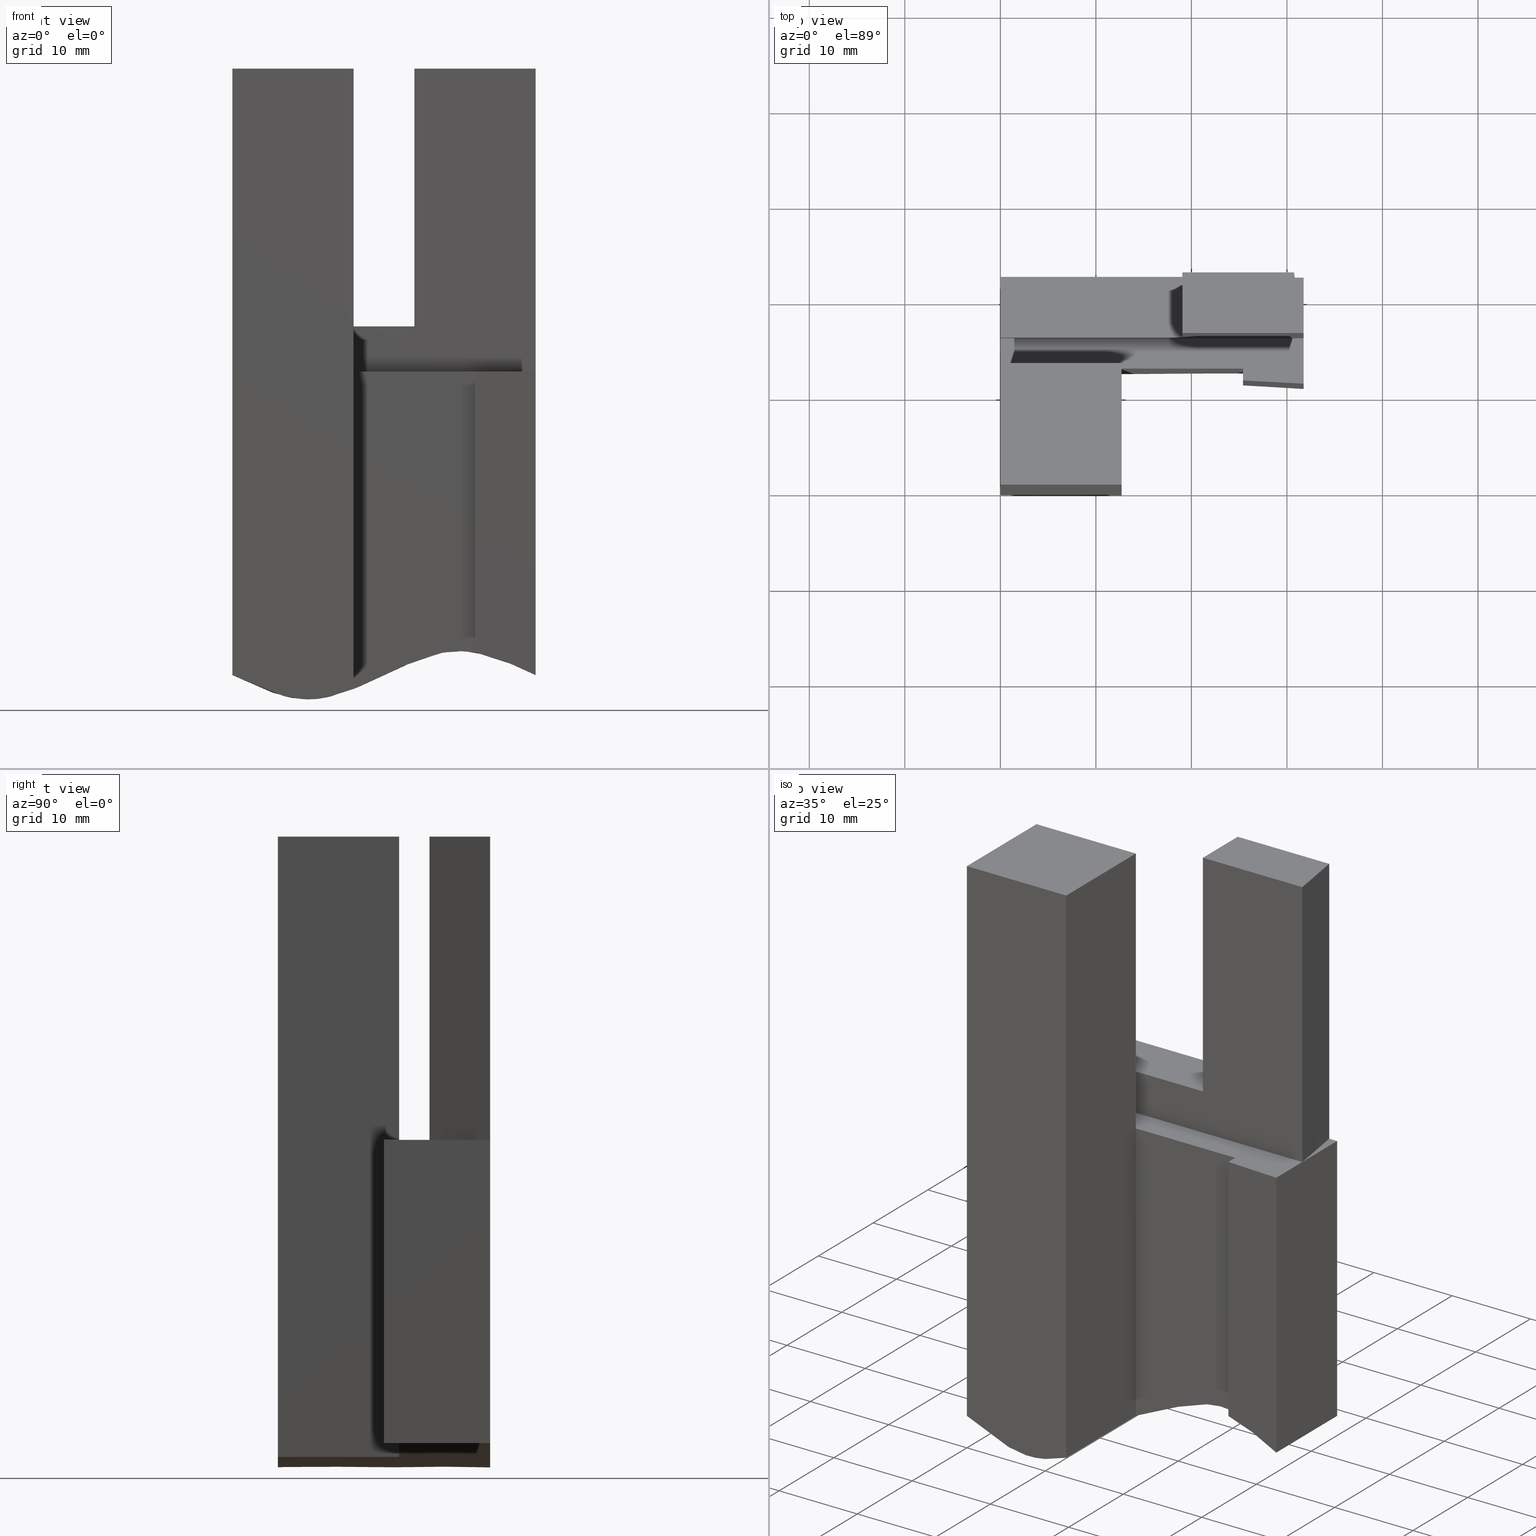
[diagram: canonical four-view strip — front | top / right | iso, engineering-drawing reading convention]
A machine part, canonical four-view strip (front | top / right | iso — engineering-drawing reading convention). The complete STEP part file that produces these views, byte-faithful:
ISO-10303-21;
HEADER;
/* Generated by software containing ST-Developer
 * from STEP Tools, Inc. (www.steptools.com) 
 */

FILE_DESCRIPTION(
/* description */ ('Alibre Inc.'),
/* implementation_level */ '2;1');

FILE_NAME(
/* name */ 'export1',
/* time_stamp */ '2018-08-25T12:08:32-06:00',
/* author */ (''),
/* organization */ (''),
/* preprocessor_version */ 'ST-DEVELOPER v17',
/* originating_system */ 'Alibre',
/* authorisation */ '');

FILE_SCHEMA (('CONFIG_CONTROL_DESIGN'));
ENDSEC;

DATA;
#10=MECHANICAL_CONTEXT('detailed design',#18,'mechanical');
#11=PRODUCT_RELATED_PRODUCT_CATEGORY('detail','',(#98));
#12=CC_DESIGN_SECURITY_CLASSIFICATION(#14,(#97));
#13=SECURITY_CLASSIFICATION_LEVEL('unclassified');
#14=SECURITY_CLASSIFICATION('name','Security for version',#13);
#15=SHAPE_DEFINITION_REPRESENTATION(#16,#632);
#16=PRODUCT_DEFINITION_SHAPE('','DefinitionDesc',#96);
#17=APPLICATION_PROTOCOL_DEFINITION('AP definition status',
'config_control_design',1994,#18);
#18=APPLICATION_CONTEXT(
'control the configuration of three dimensional design');
#19=DESIGN_CONTEXT('detailed design',#18,'design');
#20=PERSON_AND_ORGANIZATION_ROLE('creator');
#21=PERSON_AND_ORGANIZATION_ROLE('classification_officer');
#22=PERSON_AND_ORGANIZATION_ROLE('creator');
#23=PERSON_AND_ORGANIZATION_ROLE('design_supplier');
#24=PERSON_AND_ORGANIZATION_ROLE('design_owner');
#25=CC_DESIGN_PERSON_AND_ORGANIZATION_ASSIGNMENT(#57,#20,(#96));
#26=CC_DESIGN_PERSON_AND_ORGANIZATION_ASSIGNMENT(#60,#21,(#14));
#27=CC_DESIGN_PERSON_AND_ORGANIZATION_ASSIGNMENT(#61,#22,(#97));
#28=CC_DESIGN_PERSON_AND_ORGANIZATION_ASSIGNMENT(#62,#23,(#97));
#29=CC_DESIGN_PERSON_AND_ORGANIZATION_ASSIGNMENT(#63,#24,(#98));
#30=DATE_TIME_ROLE('creation_date');
#31=DATE_TIME_ROLE('classification_date');
#32=CC_DESIGN_DATE_AND_TIME_ASSIGNMENT(#86,#30,(#96));
#33=CC_DESIGN_DATE_AND_TIME_ASSIGNMENT(#89,#31,(#14));
#34=CC_DESIGN_APPROVAL(#93,(#96));
#35=CC_DESIGN_APPROVAL(#94,(#97));
#36=CC_DESIGN_APPROVAL(#95,(#14));
#37=APPROVAL_PERSON_ORGANIZATION(#56,#93,#64);
#38=APPROVAL_PERSON_ORGANIZATION(#58,#94,#65);
#39=APPROVAL_PERSON_ORGANIZATION(#59,#95,#66);
#40=ORGANIZATION('DEFINITION_APPROVEDBY_ORG_ID',
'DEFINITION_APPROVEDBY_ORG_NAME','DEFINITION_APPROVEDBY_ORG_DESCR');
#41=ORGANIZATION('DEF_CREATOR_ORG_ID','DEF_CREATOR_ORG_NAME',
'DEF_CREATOR_ORG_DESCR');
#42=ORGANIZATION('APPROVEDBY_ORG_ID','APPROVEDBY_ORG_NAME',
'APPROVEDBY_ORG_DESCR');
#43=ORGANIZATION('SECURITY_APPROVEDBY_ORG_ID',
'SECURITY_APPROVEDBY_ORG_NAME','SECURITY_APPROVEDBY_ORG_DESCR');
#44=ORGANIZATION('CLASSOFFICER_ORG_ID','CLASSOFFICER_ORG_NAME',
'CLASSOFFICER_ORG_DESCR');
#45=ORGANIZATION('CREATOR_ORG_ID','CREATOR_ORG_NAME',
'CREATOR_ORG_DESCR');
#46=ORGANIZATION('SUPPLIER_ORG_ID','SUPPLIER_ORG_NAME',
'SUPPLIER_ORG_DESCR');
#47=ORGANIZATION('OWNER_ORG_ID','OWNER_ORG_NAME','OWNER_ORG_DESCR');
#48=PERSON('DEFINITION_approverID','DEFINITION_APPROVEDBY_LASTNAME',
'DEFINITION_APPROVEDBY_FIRSTNAME',$,$,$);
#49=PERSON('DEF_createrID','DEF_CREATOR_LASTNAME',
'DEF_CREATOR_FIRSTNAME',$,$,$);
#50=PERSON('approverID','APPROVEDBY_LASTNAME','APPROVEDBY_FIRSTNAME',$,
$,$);
#51=PERSON('SECURITY_approverID','SECURITY_LASTNAME',
'SECURITY_APPROVEDBY_FIRSTNAME',$,$,$);
#52=PERSON('classifierID','CLASSOFFICER_LASTNAME',
'CLASSOFFICER_FIRSTNAME',$,$,$);
#53=PERSON('createrID','CREATOR_LASTNAME','CREATOR_FIRSTNAME',$,$,$);
#54=PERSON('supplierID','SUPPLIER_LASTNAME','SUPPLIER_FIRSTNAME',$,$,$);
#55=PERSON('ownerID','OWNER_LASTNAME','OWNER_FIRSTNAME',$,$,$);
#56=PERSON_AND_ORGANIZATION(#48,#40);
#57=PERSON_AND_ORGANIZATION(#49,#41);
#58=PERSON_AND_ORGANIZATION(#50,#42);
#59=PERSON_AND_ORGANIZATION(#51,#43);
#60=PERSON_AND_ORGANIZATION(#52,#44);
#61=PERSON_AND_ORGANIZATION(#53,#45);
#62=PERSON_AND_ORGANIZATION(#54,#46);
#63=PERSON_AND_ORGANIZATION(#55,#47);
#64=APPROVAL_ROLE('definition_approval');
#65=APPROVAL_ROLE('version_approval');
#66=APPROVAL_ROLE('security_approval');
#67=APPROVAL_DATE_TIME(#85,#93);
#68=APPROVAL_DATE_TIME(#87,#94);
#69=APPROVAL_DATE_TIME(#88,#95);
#70=COORDINATED_UNIVERSAL_TIME_OFFSET(7,0,.BEHIND.);
#71=COORDINATED_UNIVERSAL_TIME_OFFSET(7,0,.BEHIND.);
#72=COORDINATED_UNIVERSAL_TIME_OFFSET(7,0,.BEHIND.);
#73=COORDINATED_UNIVERSAL_TIME_OFFSET(7,0,.BEHIND.);
#74=COORDINATED_UNIVERSAL_TIME_OFFSET(7,0,.BEHIND.);
#75=LOCAL_TIME(8,25,30.,#70);
#76=LOCAL_TIME(8,25,30.,#71);
#77=LOCAL_TIME(8,25,30.,#72);
#78=LOCAL_TIME(8,25,30.,#73);
#79=LOCAL_TIME(8,25,30.,#74);
#80=CALENDAR_DATE(2013,28,1);
#81=CALENDAR_DATE(2013,28,1);
#82=CALENDAR_DATE(2013,28,1);
#83=CALENDAR_DATE(2013,28,1);
#84=CALENDAR_DATE(2013,28,1);
#85=DATE_AND_TIME(#80,#75);
#86=DATE_AND_TIME(#81,#76);
#87=DATE_AND_TIME(#82,#77);
#88=DATE_AND_TIME(#83,#78);
#89=DATE_AND_TIME(#84,#79);
#90=APPROVAL_STATUS('not_yet_approved');
#91=APPROVAL_STATUS('not_yet_approved');
#92=APPROVAL_STATUS('not_yet_approved');
#93=APPROVAL(#90,'defintion approval');
#94=APPROVAL(#91,'version approval');
#95=APPROVAL(#92,'security approval');
#96=PRODUCT_DEFINITION('DefinitionID','DefinitionDesc',#97,#19);
#97=PRODUCT_DEFINITION_FORMATION_WITH_SPECIFIED_SOURCE(
'PRODUCT_VERSION_ID','PRODUCT_VERSION_DESCR',#98,.NOT_KNOWN.);
#98=PRODUCT('ID_1','Deckle Tenon','',(#10));
#99=(
LENGTH_UNIT()
NAMED_UNIT(*)
SI_UNIT(.CENTI.,.METRE.)
);
#100=DIMENSIONAL_EXPONENTS(1.,0.,0.,0.,0.,0.,0.);
#101=LENGTH_MEASURE_WITH_UNIT(LENGTH_MEASURE(2.54),#99);
#102=(
CONVERSION_BASED_UNIT('INCH',#101)
LENGTH_UNIT()
NAMED_UNIT(#100)
);
#103=(
NAMED_UNIT(*)
PLANE_ANGLE_UNIT()
SI_UNIT($,.RADIAN.)
);
#104=(
NAMED_UNIT(*)
SI_UNIT($,.STERADIAN.)
SOLID_ANGLE_UNIT()
);
#105=UNCERTAINTY_MEASURE_WITH_UNIT(LENGTH_MEASURE(1.E-6),#102,
'DISTANCE_ACCURACY_VALUE',
'Maximum model space distance between geometric entities at asserted c
onnectivities');
#106=(
GEOMETRIC_REPRESENTATION_CONTEXT(3)
GLOBAL_UNCERTAINTY_ASSIGNED_CONTEXT((#105))
GLOBAL_UNIT_ASSIGNED_CONTEXT((#104,#103,#102))
REPRESENTATION_CONTEXT('ID1','3D')
);
#107=B_SPLINE_SURFACE_WITH_KNOTS('',3,1,((#574,#575),(#576,#577),(#578,
#579),(#580,#581),(#582,#583),(#584,#585),(#586,#587)),.UNSPECIFIED.,.F.,
 .F.,.U.,(4,1,1,1,4),(2,2),(0.,0.25,0.5,0.75,1.),(0.,22.0937546743774),
 .UNSPECIFIED.);
#108=VECTOR('',#427,1.);
#109=VECTOR('',#428,1.);
#110=VECTOR('',#429,1.);
#111=VECTOR('',#431,1.);
#112=VECTOR('',#432,1.);
#113=VECTOR('',#433,1.);
#114=VECTOR('',#434,1.);
#115=VECTOR('',#436,1.);
#116=VECTOR('',#437,1.);
#117=VECTOR('',#439,1.);
#118=VECTOR('',#440,1.);
#119=VECTOR('',#441,1.);
#120=VECTOR('',#442,1.);
#121=VECTOR('',#443,1.);
#122=VECTOR('',#445,1.);
#123=VECTOR('',#446,1.);
#124=VECTOR('',#447,1.);
#125=VECTOR('',#449,1.);
#126=VECTOR('',#450,1.);
#127=VECTOR('',#451,1.);
#128=VECTOR('',#452,1.);
#129=VECTOR('',#454,1.);
#130=VECTOR('',#455,1.);
#131=VECTOR('',#456,1.);
#132=VECTOR('',#458,1.);
#133=VECTOR('',#459,1.);
#134=VECTOR('',#460,1.);
#135=VECTOR('',#463,1.);
#136=VECTOR('',#464,1.);
#137=VECTOR('',#465,1.);
#138=VECTOR('',#466,1.);
#139=VECTOR('',#468,1.);
#140=VECTOR('',#469,1.);
#141=VECTOR('',#471,1.);
#142=VECTOR('',#472,1.);
#143=VECTOR('',#475,1.);
#144=VECTOR('',#476,1.);
#145=VECTOR('',#478,1.);
#146=VECTOR('',#479,1.);
#147=LINE('',#488,#108);
#148=LINE('',#490,#109);
#149=LINE('',#492,#110);
#150=LINE('',#494,#111);
#151=LINE('',#502,#112);
#152=LINE('',#504,#113);
#153=LINE('',#506,#114);
#154=LINE('',#508,#115);
#155=LINE('',#510,#116);
#156=LINE('',#517,#117);
#157=LINE('',#519,#118);
#158=LINE('',#521,#119);
#159=LINE('',#523,#120);
#160=LINE('',#524,#121);
#161=LINE('',#526,#122);
#162=LINE('',#528,#123);
#163=LINE('',#530,#124);
#164=LINE('',#532,#125);
#165=LINE('',#535,#126);
#166=LINE('',#537,#127);
#167=LINE('',#539,#128);
#168=LINE('',#541,#129);
#169=LINE('',#543,#130);
#170=LINE('',#545,#131);
#171=LINE('',#547,#132);
#172=LINE('',#549,#133);
#173=LINE('',#551,#134);
#174=LINE('',#562,#135);
#175=LINE('',#564,#136);
#176=LINE('',#573,#137);
#177=LINE('',#597,#138);
#178=LINE('',#599,#139);
#179=LINE('',#601,#140);
#180=LINE('',#603,#141);
#181=LINE('',#604,#142);
#182=LINE('',#607,#143);
#183=LINE('',#609,#144);
#184=LINE('',#611,#145);
#185=LINE('',#612,#146);
#186=VERTEX_POINT('',#486);
#187=VERTEX_POINT('',#487);
#188=VERTEX_POINT('',#489);
#189=VERTEX_POINT('',#491);
#190=VERTEX_POINT('',#495);
#191=VERTEX_POINT('',#496);
#192=VERTEX_POINT('',#501);
#193=VERTEX_POINT('',#503);
#194=VERTEX_POINT('',#505);
#195=VERTEX_POINT('',#509);
#196=VERTEX_POINT('',#511);
#197=VERTEX_POINT('',#518);
#198=VERTEX_POINT('',#520);
#199=VERTEX_POINT('',#522);
#200=VERTEX_POINT('',#527);
#201=VERTEX_POINT('',#529);
#202=VERTEX_POINT('',#533);
#203=VERTEX_POINT('',#534);
#204=VERTEX_POINT('',#536);
#205=VERTEX_POINT('',#538);
#206=VERTEX_POINT('',#542);
#207=VERTEX_POINT('',#544);
#208=VERTEX_POINT('',#548);
#209=VERTEX_POINT('',#550);
#210=VERTEX_POINT('',#563);
#211=VERTEX_POINT('',#572);
#212=VERTEX_POINT('',#596);
#213=VERTEX_POINT('',#600);
#214=VERTEX_POINT('',#608);
#215=B_SPLINE_CURVE_WITH_KNOTS('',3,(#482,#483,#484,#485),.UNSPECIFIED.,
 .F.,.U.,(4,4),(-0.690991863041183,0.),.UNSPECIFIED.);
#216=B_SPLINE_CURVE_WITH_KNOTS('',3,(#497,#498,#499,#500),.UNSPECIFIED.,
 .F.,.U.,(4,4),(0.,1.37),.UNSPECIFIED.);
#217=B_SPLINE_CURVE_WITH_KNOTS('',3,(#512,#513,#514,#515),.UNSPECIFIED.,
 .F.,.U.,(4,4),(0.,1.37),.UNSPECIFIED.);
#218=B_SPLINE_CURVE_WITH_KNOTS('',3,(#553,#554,#555,#556,#557,#558,#559,
#560),.UNSPECIFIED.,.F.,.U.,(4,2,2,4),(0.,0.732328172806701,1.08271797790238,
1.39317423581127),.UNSPECIFIED.);
#219=B_SPLINE_CURVE_WITH_KNOTS('',3,(#565,#566,#567,#568,#569,#570,#571),
 .UNSPECIFIED.,.F.,.U.,(4,1,1,1,4),(0.,0.25,0.5,0.75,1.),.UNSPECIFIED.);
#220=B_SPLINE_CURVE_WITH_KNOTS('',3,(#588,#589,#590,#591,#592,#593,#594,
#595),.UNSPECIFIED.,.F.,.U.,(4,2,2,4),(0.,0.732094420139848,1.07029212507306,
1.37600662563691),.UNSPECIFIED.);
#221=EDGE_CURVE('',#186,#187,#215,.T.);
#222=EDGE_CURVE('',#188,#186,#147,.T.);
#223=EDGE_CURVE('',#189,#188,#148,.T.);
#224=EDGE_CURVE('',#187,#189,#149,.T.);
#225=EDGE_CURVE('',#190,#191,#150,.T.);
#226=EDGE_CURVE('',#190,#192,#216,.T.);
#227=EDGE_CURVE('',#192,#193,#151,.T.);
#228=EDGE_CURVE('',#194,#193,#152,.T.);
#229=EDGE_CURVE('',#191,#194,#153,.T.);
#230=EDGE_CURVE('',#189,#195,#154,.T.);
#231=EDGE_CURVE('',#196,#195,#155,.T.);
#232=EDGE_CURVE('',#196,#187,#217,.T.);
#233=EDGE_CURVE('',#197,#188,#156,.T.);
#234=EDGE_CURVE('',#197,#198,#157,.T.);
#235=EDGE_CURVE('',#199,#198,#158,.T.);
#236=EDGE_CURVE('',#199,#193,#159,.T.);
#237=EDGE_CURVE('',#195,#193,#160,.T.);
#238=EDGE_CURVE('',#186,#200,#161,.T.);
#239=EDGE_CURVE('',#201,#200,#162,.T.);
#240=EDGE_CURVE('',#201,#197,#163,.T.);
#241=EDGE_CURVE('',#202,#203,#164,.T.);
#242=EDGE_CURVE('',#204,#203,#165,.T.);
#243=EDGE_CURVE('',#205,#204,#166,.T.);
#244=EDGE_CURVE('',#202,#205,#167,.T.);
#245=EDGE_CURVE('',#206,#203,#168,.T.);
#246=EDGE_CURVE('',#207,#206,#169,.T.);
#247=EDGE_CURVE('',#204,#207,#170,.T.);
#248=EDGE_CURVE('',#206,#208,#171,.T.);
#249=EDGE_CURVE('',#208,#209,#172,.T.);
#250=EDGE_CURVE('',#209,#207,#173,.T.);
#251=EDGE_CURVE('',#192,#196,#218,.T.);
#252=EDGE_CURVE('',#209,#210,#174,.T.);
#253=EDGE_CURVE('',#210,#201,#175,.T.);
#254=EDGE_CURVE('',#200,#211,#219,.F.);
#255=EDGE_CURVE('',#205,#211,#176,.T.);
#256=EDGE_CURVE('',#212,#190,#220,.T.);
#257=EDGE_CURVE('',#211,#212,#177,.T.);
#258=EDGE_CURVE('',#213,#191,#178,.T.);
#259=EDGE_CURVE('',#213,#212,#179,.T.);
#260=EDGE_CURVE('',#210,#197,#180,.T.);
#261=EDGE_CURVE('',#197,#208,#181,.T.);
#262=EDGE_CURVE('',#214,#199,#182,.T.);
#263=EDGE_CURVE('',#194,#214,#183,.T.);
#264=EDGE_CURVE('',#198,#202,#184,.T.);
#265=EDGE_CURVE('',#214,#213,#185,.T.);
#266=ORIENTED_EDGE('',*,*,#221,.F.);
#267=ORIENTED_EDGE('',*,*,#222,.F.);
#268=ORIENTED_EDGE('',*,*,#223,.F.);
#269=ORIENTED_EDGE('',*,*,#224,.F.);
#270=ORIENTED_EDGE('',*,*,#225,.F.);
#271=ORIENTED_EDGE('',*,*,#226,.T.);
#272=ORIENTED_EDGE('',*,*,#227,.T.);
#273=ORIENTED_EDGE('',*,*,#228,.F.);
#274=ORIENTED_EDGE('',*,*,#229,.F.);
#275=ORIENTED_EDGE('',*,*,#224,.T.);
#276=ORIENTED_EDGE('',*,*,#230,.T.);
#277=ORIENTED_EDGE('',*,*,#231,.F.);
#278=ORIENTED_EDGE('',*,*,#232,.T.);
#279=ORIENTED_EDGE('',*,*,#223,.T.);
#280=ORIENTED_EDGE('',*,*,#233,.F.);
#281=ORIENTED_EDGE('',*,*,#234,.T.);
#282=ORIENTED_EDGE('',*,*,#235,.F.);
#283=ORIENTED_EDGE('',*,*,#236,.T.);
#284=ORIENTED_EDGE('',*,*,#237,.F.);
#285=ORIENTED_EDGE('',*,*,#230,.F.);
#286=ORIENTED_EDGE('',*,*,#222,.T.);
#287=ORIENTED_EDGE('',*,*,#238,.T.);
#288=ORIENTED_EDGE('',*,*,#239,.F.);
#289=ORIENTED_EDGE('',*,*,#240,.T.);
#290=ORIENTED_EDGE('',*,*,#233,.T.);
#291=ORIENTED_EDGE('',*,*,#241,.T.);
#292=ORIENTED_EDGE('',*,*,#242,.F.);
#293=ORIENTED_EDGE('',*,*,#243,.F.);
#294=ORIENTED_EDGE('',*,*,#244,.F.);
#295=ORIENTED_EDGE('',*,*,#245,.F.);
#296=ORIENTED_EDGE('',*,*,#246,.F.);
#297=ORIENTED_EDGE('',*,*,#247,.F.);
#298=ORIENTED_EDGE('',*,*,#242,.T.);
#299=ORIENTED_EDGE('',*,*,#248,.T.);
#300=ORIENTED_EDGE('',*,*,#249,.T.);
#301=ORIENTED_EDGE('',*,*,#250,.T.);
#302=ORIENTED_EDGE('',*,*,#246,.T.);
#303=ORIENTED_EDGE('',*,*,#237,.T.);
#304=ORIENTED_EDGE('',*,*,#227,.F.);
#305=ORIENTED_EDGE('',*,*,#251,.T.);
#306=ORIENTED_EDGE('',*,*,#231,.T.);
#307=ORIENTED_EDGE('',*,*,#243,.T.);
#308=ORIENTED_EDGE('',*,*,#247,.T.);
#309=ORIENTED_EDGE('',*,*,#250,.F.);
#310=ORIENTED_EDGE('',*,*,#252,.T.);
#311=ORIENTED_EDGE('',*,*,#253,.T.);
#312=ORIENTED_EDGE('',*,*,#239,.T.);
#313=ORIENTED_EDGE('',*,*,#254,.T.);
#314=ORIENTED_EDGE('',*,*,#255,.F.);
#315=ORIENTED_EDGE('',*,*,#221,.T.);
#316=ORIENTED_EDGE('',*,*,#232,.F.);
#317=ORIENTED_EDGE('',*,*,#251,.F.);
#318=ORIENTED_EDGE('',*,*,#226,.F.);
#319=ORIENTED_EDGE('',*,*,#256,.F.);
#320=ORIENTED_EDGE('',*,*,#257,.F.);
#321=ORIENTED_EDGE('',*,*,#254,.F.);
#322=ORIENTED_EDGE('',*,*,#238,.F.);
#323=ORIENTED_EDGE('',*,*,#256,.T.);
#324=ORIENTED_EDGE('',*,*,#225,.T.);
#325=ORIENTED_EDGE('',*,*,#258,.F.);
#326=ORIENTED_EDGE('',*,*,#259,.T.);
#327=ORIENTED_EDGE('',*,*,#260,.F.);
#328=ORIENTED_EDGE('',*,*,#252,.F.);
#329=ORIENTED_EDGE('',*,*,#249,.F.);
#330=ORIENTED_EDGE('',*,*,#261,.F.);
#331=ORIENTED_EDGE('',*,*,#260,.T.);
#332=ORIENTED_EDGE('',*,*,#240,.F.);
#333=ORIENTED_EDGE('',*,*,#253,.F.);
#334=ORIENTED_EDGE('',*,*,#228,.T.);
#335=ORIENTED_EDGE('',*,*,#236,.F.);
#336=ORIENTED_EDGE('',*,*,#262,.F.);
#337=ORIENTED_EDGE('',*,*,#263,.F.);
#338=ORIENTED_EDGE('',*,*,#245,.T.);
#339=ORIENTED_EDGE('',*,*,#241,.F.);
#340=ORIENTED_EDGE('',*,*,#264,.F.);
#341=ORIENTED_EDGE('',*,*,#234,.F.);
#342=ORIENTED_EDGE('',*,*,#261,.T.);
#343=ORIENTED_EDGE('',*,*,#248,.F.);
#344=ORIENTED_EDGE('',*,*,#229,.T.);
#345=ORIENTED_EDGE('',*,*,#263,.T.);
#346=ORIENTED_EDGE('',*,*,#265,.T.);
#347=ORIENTED_EDGE('',*,*,#258,.T.);
#348=ORIENTED_EDGE('',*,*,#264,.T.);
#349=ORIENTED_EDGE('',*,*,#244,.T.);
#350=ORIENTED_EDGE('',*,*,#255,.T.);
#351=ORIENTED_EDGE('',*,*,#257,.T.);
#352=ORIENTED_EDGE('',*,*,#259,.F.);
#353=ORIENTED_EDGE('',*,*,#265,.F.);
#354=ORIENTED_EDGE('',*,*,#262,.T.);
#355=ORIENTED_EDGE('',*,*,#235,.T.);
#356=EDGE_LOOP('',(#266,#267,#268,#269));
#357=EDGE_LOOP('',(#270,#271,#272,#273,#274));
#358=EDGE_LOOP('',(#275,#276,#277,#278));
#359=EDGE_LOOP('',(#279,#280,#281,#282,#283,#284,#285));
#360=EDGE_LOOP('',(#286,#287,#288,#289,#290));
#361=EDGE_LOOP('',(#291,#292,#293,#294));
#362=EDGE_LOOP('',(#295,#296,#297,#298));
#363=EDGE_LOOP('',(#299,#300,#301,#302));
#364=EDGE_LOOP('',(#303,#304,#305,#306));
#365=EDGE_LOOP('',(#307,#308,#309,#310,#311,#312,#313,#314));
#366=EDGE_LOOP('',(#315,#316,#317,#318,#319,#320,#321,#322));
#367=EDGE_LOOP('',(#323,#324,#325,#326));
#368=EDGE_LOOP('',(#327,#328,#329,#330));
#369=EDGE_LOOP('',(#331,#332,#333));
#370=EDGE_LOOP('',(#334,#335,#336,#337));
#371=EDGE_LOOP('',(#338,#339,#340,#341,#342,#343));
#372=EDGE_LOOP('',(#344,#345,#346,#347));
#373=EDGE_LOOP('',(#348,#349,#350,#351,#352,#353,#354,#355));
#374=FACE_BOUND('',#356,.T.);
#375=FACE_BOUND('',#357,.T.);
#376=FACE_BOUND('',#358,.T.);
#377=FACE_BOUND('',#359,.T.);
#378=FACE_BOUND('',#360,.T.);
#379=FACE_BOUND('',#361,.T.);
#380=FACE_BOUND('',#362,.T.);
#381=FACE_BOUND('',#363,.T.);
#382=FACE_BOUND('',#364,.T.);
#383=FACE_BOUND('',#365,.T.);
#384=FACE_BOUND('',#366,.T.);
#385=FACE_BOUND('',#367,.T.);
#386=FACE_BOUND('',#368,.T.);
#387=FACE_BOUND('',#369,.T.);
#388=FACE_BOUND('',#370,.T.);
#389=FACE_BOUND('',#371,.T.);
#390=FACE_BOUND('',#372,.T.);
#391=FACE_BOUND('',#373,.T.);
#392=ADVANCED_FACE('',(#374),#614,.F.);
#393=ADVANCED_FACE('',(#375),#615,.F.);
#394=ADVANCED_FACE('',(#376),#616,.F.);
#395=ADVANCED_FACE('',(#377),#617,.T.);
#396=ADVANCED_FACE('',(#378),#618,.T.);
#397=ADVANCED_FACE('',(#379),#619,.F.);
#398=ADVANCED_FACE('',(#380),#620,.F.);
#399=ADVANCED_FACE('',(#381),#621,.T.);
#400=ADVANCED_FACE('',(#382),#622,.F.);
#401=ADVANCED_FACE('',(#383),#623,.T.);
#402=ADVANCED_FACE('',(#384),#107,.F.);
#403=ADVANCED_FACE('',(#385),#624,.T.);
#404=ADVANCED_FACE('',(#386),#625,.F.);
#405=ADVANCED_FACE('',(#387),#626,.T.);
#406=ADVANCED_FACE('',(#388),#627,.F.);
#407=ADVANCED_FACE('',(#389),#628,.F.);
#408=ADVANCED_FACE('',(#390),#621,.T.);
#409=ADVANCED_FACE('',(#391),#629,.T.);
#410=AXIS2_PLACEMENT_3D('',#481,#426,$);
#411=AXIS2_PLACEMENT_3D('',#493,#430,$);
#412=AXIS2_PLACEMENT_3D('',#507,#435,$);
#413=AXIS2_PLACEMENT_3D('',#516,#438,$);
#414=AXIS2_PLACEMENT_3D('',#525,#444,$);
#415=AXIS2_PLACEMENT_3D('',#531,#448,$);
#416=AXIS2_PLACEMENT_3D('',#540,#453,$);
#417=AXIS2_PLACEMENT_3D('',#546,#457,$);
#418=AXIS2_PLACEMENT_3D('',#552,#461,$);
#419=AXIS2_PLACEMENT_3D('',#561,#462,$);
#420=AXIS2_PLACEMENT_3D('',#598,#467,$);
#421=AXIS2_PLACEMENT_3D('',#602,#470,$);
#422=AXIS2_PLACEMENT_3D('',#605,#473,$);
#423=AXIS2_PLACEMENT_3D('',#606,#474,$);
#424=AXIS2_PLACEMENT_3D('',#610,#477,$);
#425=AXIS2_PLACEMENT_3D('',#613,#480,$);
#426=DIRECTION('',(0.052335956242942,0.998629534754574,1.55074763536797E-31));
#427=DIRECTION('',(0.,1.55287579767916E-31,-1.));
#428=DIRECTION('',(0.998629534754574,-0.052335956242942,4.51149641625811E-30));
#429=DIRECTION('',(0.,-1.55287579767916E-31,1.));
#430=DIRECTION('',(-1.,7.86772222175311E-15,0.));
#431=DIRECTION('',(0.,0.,1.));
#432=DIRECTION('',(0.,0.,1.));
#433=DIRECTION('',(0.,0.,-1.));
#434=DIRECTION('',(7.86772222175311E-15,1.,0.));
#435=DIRECTION('',(1.,0.,0.));
#436=DIRECTION('',(0.,1.,1.57678304053942E-31));
#437=DIRECTION('',(0.,0.,1.));
#438=DIRECTION('',(-4.52595132006618E-30,-1.57678304053942E-31,1.));
#439=DIRECTION('',(0.,-1.,-1.57678304053942E-31));
#440=DIRECTION('',(-1.,1.54557032089551E-14,0.));
#441=DIRECTION('',(0.,1.,0.));
#442=DIRECTION('',(1.,-1.52109296287228E-14,0.));
#443=DIRECTION('',(-1.,0.,0.));
#444=DIRECTION('',(1.,0.,0.));
#445=DIRECTION('',(0.,1.,0.));
#446=DIRECTION('',(0.,0.,-1.));
#447=DIRECTION('',(0.,-1.,0.));
#448=DIRECTION('',(0.,0.,-1.));
#449=DIRECTION('',(1.,-1.54557032089551E-14,0.));
#450=DIRECTION('',(0.,-1.,0.));
#451=DIRECTION('',(1.,0.,0.));
#452=DIRECTION('',(0.,1.,0.));
#453=DIRECTION('',(1.,0.,0.));
#454=DIRECTION('',(0.,0.,-1.));
#455=DIRECTION('',(0.,-1.,0.));
#456=DIRECTION('',(0.,0.,1.));
#457=DIRECTION('',(0.,0.,1.));
#458=DIRECTION('',(1.,-1.54557032089551E-14,0.));
#459=DIRECTION('',(-0.156434465040235,0.987688340595137,0.));
#460=DIRECTION('',(-1.,0.,0.));
#461=DIRECTION('',(0.,1.,0.));
#462=DIRECTION('',(0.,1.,0.));
#463=DIRECTION('',(0.,0.,-1.));
#464=DIRECTION('',(1.,0.,0.));
#465=DIRECTION('',(0.,0.,-1.));
#466=DIRECTION('',(0.,-1.,0.));
#467=DIRECTION('',(1.04902962956708E-16,-1.,0.));
#468=DIRECTION('',(1.,1.04902962956708E-16,0.));
#469=DIRECTION('',(0.,0.,-1.));
#470=DIRECTION('',(-0.987688340595137,-0.156434465040235,0.));
#471=DIRECTION('',(0.156434465040235,-0.987688340595137,0.));
#472=DIRECTION('',(0.,0.,1.));
#473=DIRECTION('',(0.,0.,1.));
#474=DIRECTION('',(0.,-1.,0.));
#475=DIRECTION('',(0.,0.,-1.));
#476=DIRECTION('',(-1.,0.,0.));
#477=DIRECTION('',(0.,1.,0.));
#478=DIRECTION('',(0.,0.,1.));
#479=DIRECTION('',(0.,-1.,0.));
#480=DIRECTION('',(-1.,0.,0.));
#481=CARTESIAN_POINT('',(1.125,0.44444902758962,-1.25));
#482=CARTESIAN_POINT('',(1.24999999999999,0.437898055179241,-2.49999999999998));
#483=CARTESIAN_POINT('',(1.16011397943074,0.442608781905864,-2.45685471012674));
#484=CARTESIAN_POINT('',(1.07022795886149,0.447319508632489,-2.41370942025349));
#485=CARTESIAN_POINT('',(0.980341938292233,0.452030235359113,-2.40269039000978));
#486=CARTESIAN_POINT('',(1.25,0.43789805517924,-2.49999999999998));
#487=CARTESIAN_POINT('',(1.,0.451,-2.40559999999998));
#488=CARTESIAN_POINT('',(1.25,0.43789805517924,-0.625));
#489=CARTESIAN_POINT('',(1.25,0.43789805517924,-1.25));
#490=CARTESIAN_POINT('',(1.1284481072709,0.444268319944822,-1.25));
#491=CARTESIAN_POINT('',(1.,0.451,-1.25));
#492=CARTESIAN_POINT('',(1.,0.451,-3.01556797369296));
#493=CARTESIAN_POINT('',(0.499999999999994,0.250000000000001,0.));
#494=CARTESIAN_POINT('',(0.499999999999992,4.37095678986282E-17,0.));
#495=CARTESIAN_POINT('',(0.499999999999992,4.37095678986282E-17,-2.55679999999997));
#496=CARTESIAN_POINT('',(0.499999999999992,1.83580185174238E-15,0.));
#497=CARTESIAN_POINT('',(0.499999999999992,-0.019685039370079,-2.55679999999997));
#498=CARTESIAN_POINT('',(0.499999999999993,0.16010498687664,-2.55679999999997));
#499=CARTESIAN_POINT('',(0.499999999999995,0.33989501312336,-2.55679999999997));
#500=CARTESIAN_POINT('',(0.499999999999996,0.519685039370079,-2.55679999999997));
#501=CARTESIAN_POINT('',(0.5,0.5,-2.55679999999997));
#502=CARTESIAN_POINT('',(0.5,0.5,-4.78113594738593));
#503=CARTESIAN_POINT('',(0.500000000000002,0.500000000000011,-1.25));
#504=CARTESIAN_POINT('',(0.499999999999996,0.5,0.));
#505=CARTESIAN_POINT('',(0.499999999999996,0.5,0.));
#506=CARTESIAN_POINT('',(0.499999999999995,0.343750000000001,0.));
#507=CARTESIAN_POINT('',(1.,0.25,-4.78113594738593));
#508=CARTESIAN_POINT('',(1.,0.28125,-1.25));
#509=CARTESIAN_POINT('',(0.999999999999997,0.5,-1.25));
#510=CARTESIAN_POINT('',(1.,0.5,-4.78113594738593));
#511=CARTESIAN_POINT('',(1.,0.5,-2.40559999999998));
#512=CARTESIAN_POINT('',(1.,0.519685039370079,-2.40559999999998));
#513=CARTESIAN_POINT('',(1.,0.33989501312336,-2.40559999999998));
#514=CARTESIAN_POINT('',(1.,0.16010498687664,-2.40559999999998));
#515=CARTESIAN_POINT('',(1.,-0.019685039370079,-2.40559999999998));
#516=CARTESIAN_POINT('',(1.125,0.312499999999999,-1.25));
#517=CARTESIAN_POINT('',(1.25,0.375,-1.25));
#518=CARTESIAN_POINT('',(1.25,0.625,-1.25));
#519=CARTESIAN_POINT('',(1.25,0.625,-1.25));
#520=CARTESIAN_POINT('',(1.03154580240763E-14,0.625000000000019,-1.25));
#521=CARTESIAN_POINT('',(0.,0.479166666666671,-1.25));
#522=CARTESIAN_POINT('',(8.30481790073936E-15,0.500000000000019,-1.25));
#523=CARTESIAN_POINT('',(8.30481790073936E-15,0.500000000000019,-1.25));
#524=CARTESIAN_POINT('',(0.697916666666669,0.5,-1.25));
#525=CARTESIAN_POINT('',(1.25,0.4375,0.));
#526=CARTESIAN_POINT('',(1.24999999999999,-3.4741643059798,-2.49999999999998));
#527=CARTESIAN_POINT('',(1.24999999999999,0.875,-2.49999999999998));
#528=CARTESIAN_POINT('',(1.25,0.875,0.));
#529=CARTESIAN_POINT('',(1.25,0.875,-1.25));
#530=CARTESIAN_POINT('',(1.25,0.598309978579267,-1.25));
#531=CARTESIAN_POINT('',(0.374999999999998,0.875,-1.0625));
#532=CARTESIAN_POINT('',(0.5,0.625000000000011,-1.0625));
#533=CARTESIAN_POINT('',(1.03154580240763E-14,0.625000000000019,-1.0625));
#534=CARTESIAN_POINT('',(0.749999999999996,0.625000000000008,-1.0625));
#535=CARTESIAN_POINT('',(0.749999999999996,0.875,-1.0625));
#536=CARTESIAN_POINT('',(0.749999999999996,0.875,-1.0625));
#537=CARTESIAN_POINT('',(0.499999999999999,0.875,-1.0625));
#538=CARTESIAN_POINT('',(1.95178083614109E-16,0.875,-1.0625));
#539=CARTESIAN_POINT('',(0.,0.65625,-1.0625));
#540=CARTESIAN_POINT('',(0.749999999999996,0.749999999999998,0.));
#541=CARTESIAN_POINT('',(0.749999999999996,0.624999999999996,0.));
#542=CARTESIAN_POINT('',(0.749999999999996,0.624999999999996,0.));
#543=CARTESIAN_POINT('',(0.749999999999996,0.593749999999999,0.));
#544=CARTESIAN_POINT('',(0.749999999999996,0.875,0.));
#545=CARTESIAN_POINT('',(0.749999999999996,0.875,0.));
#546=CARTESIAN_POINT('',(0.625,0.4375,0.));
#547=CARTESIAN_POINT('',(0.625000000000004,0.62500000000001,0.));
#548=CARTESIAN_POINT('',(1.25,0.625,0.));
#549=CARTESIAN_POINT('',(1.24693872476216,0.644328131169751,0.));
#550=CARTESIAN_POINT('',(1.21040388991886,0.875,0.));
#551=CARTESIAN_POINT('',(1.25,0.875,0.));
#552=CARTESIAN_POINT('',(0.75,0.5,-4.78113594738593));
#553=CARTESIAN_POINT('',(0.480314960629917,0.5,-2.56448642973503));
#554=CARTESIAN_POINT('',(0.570239441521331,0.5,-2.53057533428953));
#555=CARTESIAN_POINT('',(0.660102666609881,0.5,-2.47944660482287));
#556=CARTESIAN_POINT('',(0.793012286424079,0.5,-2.42585744611378));
#557=CARTESIAN_POINT('',(0.838664925830264,0.5,-2.41086032656842));
#558=CARTESIAN_POINT('',(0.925757303103109,0.5,-2.39795890922153));
#559=CARTESIAN_POINT('',(0.967950318082869,0.5,-2.39812119456858));
#560=CARTESIAN_POINT('',(1.01968503937008,0.5,-2.40946523809266));
#561=CARTESIAN_POINT('',(0.625,0.875,0.));
#562=CARTESIAN_POINT('',(1.21040388991886,0.875,0.));
#563=CARTESIAN_POINT('',(1.21040388991886,0.875,-1.25));
#564=CARTESIAN_POINT('',(0.932160951058981,0.875,-1.25));
#565=CARTESIAN_POINT('',(-8.39223703653661E-15,0.875,-2.49999999999995));
#566=CARTESIAN_POINT('',(0.104166666666656,0.875,-2.54999999999996));
#567=CARTESIAN_POINT('',(0.312499999999986,0.875,-2.64999999999996));
#568=CARTESIAN_POINT('',(0.624999999999992,0.875,-2.49999999999998));
#569=CARTESIAN_POINT('',(0.937499999999992,0.875,-2.34999999999998));
#570=CARTESIAN_POINT('',(1.14583333333333,0.875,-2.44999999999998));
#571=CARTESIAN_POINT('',(1.24999999999999,0.875,-2.49999999999998));
#572=CARTESIAN_POINT('',(-8.39223703653661E-15,0.875,-2.49999999999995));
#573=CARTESIAN_POINT('',(0.,0.875,0.));
#574=CARTESIAN_POINT('',(-8.39223703653661E-15,-3.4741643059798,-2.49999999999995));
#575=CARTESIAN_POINT('',(-8.39223703653661E-15,5.2241643059798,-2.49999999999995));
#576=CARTESIAN_POINT('',(0.104166666666656,-3.4741643059798,-2.54999999999996));
#577=CARTESIAN_POINT('',(0.104166666666656,5.2241643059798,-2.54999999999996));
#578=CARTESIAN_POINT('',(0.312499999999986,-3.4741643059798,-2.64999999999996));
#579=CARTESIAN_POINT('',(0.312499999999986,5.2241643059798,-2.64999999999996));
#580=CARTESIAN_POINT('',(0.624999999999992,-3.4741643059798,-2.49999999999998));
#581=CARTESIAN_POINT('',(0.624999999999992,5.2241643059798,-2.49999999999998));
#582=CARTESIAN_POINT('',(0.937499999999992,-3.4741643059798,-2.34999999999998));
#583=CARTESIAN_POINT('',(0.937499999999992,5.2241643059798,-2.34999999999998));
#584=CARTESIAN_POINT('',(1.14583333333333,-3.4741643059798,-2.44999999999998));
#585=CARTESIAN_POINT('',(1.14583333333333,5.2241643059798,-2.44999999999998));
#586=CARTESIAN_POINT('',(1.24999999999999,-3.4741643059798,-2.49999999999998));
#587=CARTESIAN_POINT('',(1.24999999999999,5.2241643059798,-2.49999999999998));
#588=CARTESIAN_POINT('',(-8.39223703653661E-15,0.,-2.49999999999995));
#589=CARTESIAN_POINT('',(0.0866141732283283,9.08608340569808E-18,-2.54157480314956));
#590=CARTESIAN_POINT('',(0.17322834645668,-9.08608340569972E-18,-2.58314960629917));
#591=CARTESIAN_POINT('',(0.299854728212617,4.19739922898524E-18,-2.60190738797095));
#592=CARTESIAN_POINT('',(0.340608797792548,-5.15650322808514E-18,-2.60181108190873));
#593=CARTESIAN_POINT('',(0.434197524855042,4.66123154011714E-18,-2.58234349402926));
#594=CARTESIAN_POINT('',(0.478239572067207,-4.34775232119665E-18,-2.56627180630594));
#595=CARTESIAN_POINT('',(0.519685039370079,0.,-2.54863740931258));
#596=CARTESIAN_POINT('',(-8.39223703653661E-15,0.,-2.49999999999995));
#597=CARTESIAN_POINT('',(-8.39223703653661E-15,-3.4741643059798,-2.49999999999995));
#598=CARTESIAN_POINT('',(0.625,6.55643518479423E-17,0.));
#599=CARTESIAN_POINT('',(0.,0.,0.));
#600=CARTESIAN_POINT('',(0.,0.,0.));
#601=CARTESIAN_POINT('',(0.,0.,0.));
#602=CARTESIAN_POINT('',(1.23020194495943,0.75,0.));
#603=CARTESIAN_POINT('',(1.21040388991886,0.875,-1.25));
#604=CARTESIAN_POINT('',(1.25,0.624999999999976,0.));
#605=CARTESIAN_POINT('',(1.23932190211796,0.759119957158534,-1.25));
#606=CARTESIAN_POINT('',(0.249999999999998,0.5,0.));
#607=CARTESIAN_POINT('',(0.,0.500000000000019,0.));
#608=CARTESIAN_POINT('',(-8.67864294575437E-16,0.5,0.));
#609=CARTESIAN_POINT('',(0.437499999999999,0.5,0.));
#610=CARTESIAN_POINT('',(0.874999999999996,0.624999999999996,0.));
#611=CARTESIAN_POINT('',(0.,0.625000000000019,0.));
#612=CARTESIAN_POINT('',(0.,0.875,0.));
#613=CARTESIAN_POINT('',(0.,0.4375,0.));
#614=PLANE('',#410);
#615=PLANE('',#411);
#616=PLANE('',#412);
#617=PLANE('',#413);
#618=PLANE('',#414);
#619=PLANE('',#415);
#620=PLANE('',#416);
#621=PLANE('',#417);
#622=PLANE('',#418);
#623=PLANE('',#419);
#624=PLANE('',#420);
#625=PLANE('',#421);
#626=PLANE('',#422);
#627=PLANE('',#423);
#628=PLANE('',#424);
#629=PLANE('',#425);
#630=CLOSED_SHELL('',(#392,#393,#394,#395,#396,#397,#398,#399,#400,#401,
#402,#403,#404,#405,#406,#407,#408,#409));
#631=MANIFOLD_SOLID_BREP('',#630);
#632=ADVANCED_BREP_SHAPE_REPRESENTATION('',(#631),#106);
ENDSEC;
END-ISO-10303-21;
